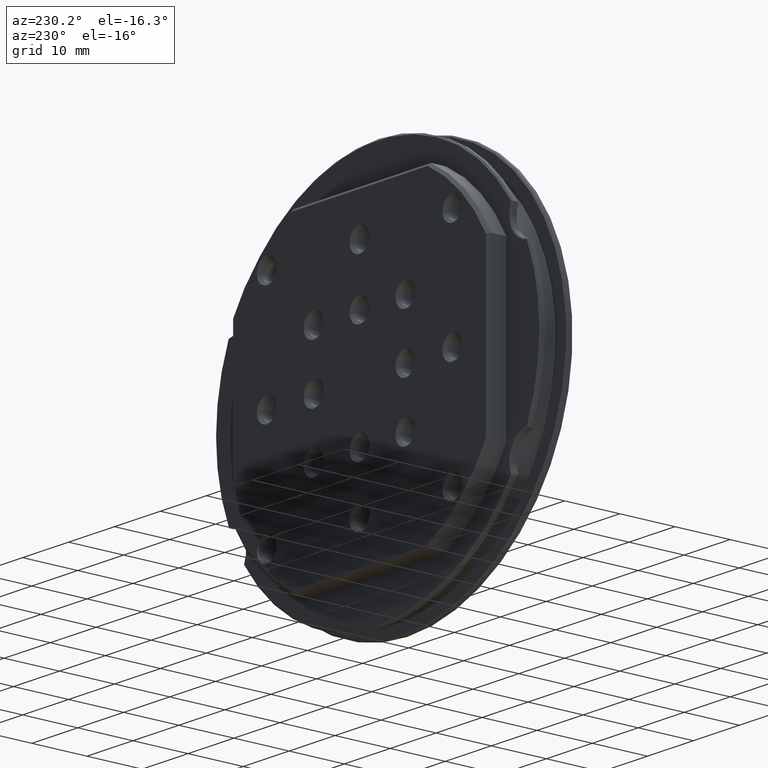
[diagram: clean part render]
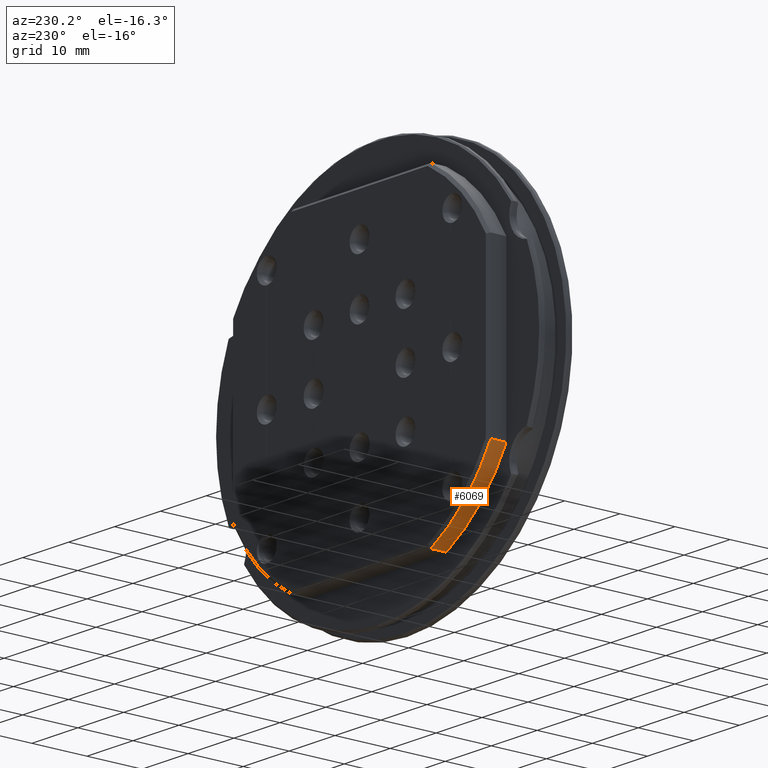
[diagram: same view with one face highlighted and labeled with its STEP entity id]
A machine part, auxiliary view. The second image highlights one B-rep face of the part: STEP entity #6069.
In plain terms, the highlighted cylindrical surface (partial cylindrical patch) has radius 31.75 mm, axis along (-0, 1, -0).
Its self-contained STEP definition (entity closure, byte-faithful):
#250 = CARTESIAN_POINT ( 'NONE',  ( -14.96871737992272067, 5.599999999999999645, -27.99999999999998934 ) ) ;
#494 = DIRECTION ( 'NONE',  ( 0.000000000000000000, -1.000000000000000000, 0.000000000000000000 ) ) ;
#642 = CIRCLE ( 'NONE', #4688, 31.75000000000000000 ) ;
#988 = LINE ( 'NONE', #6336, #2272 ) ;
#1147 = VERTEX_POINT ( 'NONE', #7429 ) ;
#1159 = ORIENTED_EDGE ( 'NONE', *, *, #1390, .T. ) ;
#1381 = EDGE_CURVE ( 'NONE', #5676, #1147, #6469, .T. ) ;
#1390 = EDGE_CURVE ( 'NONE', #1147, #1741, #988, .T. ) ;
#1567 = ORIENTED_EDGE ( 'NONE', *, *, #6518, .T. ) ;
#1731 = DIRECTION ( 'NONE',  ( 0.000000000000000000, 0.000000000000000000, 1.000000000000000000 ) ) ;
#1741 = VERTEX_POINT ( 'NONE', #6709 ) ;
#1854 = DIRECTION ( 'NONE',  ( -0.000000000000000000, 1.000000000000000000, -0.000000000000000000 ) ) ;
#2272 = VECTOR ( 'NONE', #4287, 1000.000000000000000 ) ;
#2364 = CARTESIAN_POINT ( 'NONE',  ( -14.96871737992272067, 8.399999999999991473, -27.99999999999998934 ) ) ;
#2735 = EDGE_CURVE ( 'NONE', #1741, #6852, #642, .T. ) ;
#3268 = DIRECTION ( 'NONE',  ( 0.000000000000000000, 0.000000000000000000, 1.000000000000000000 ) ) ;
#3554 = CARTESIAN_POINT ( 'NONE',  ( 0.000000000000000000, 8.399999999999993250, 0.000000000000000000 ) ) ;
#3754 = DIRECTION ( 'NONE',  ( 0.000000000000000000, 0.000000000000000000, 1.000000000000000000 ) ) ;
#3867 = ORIENTED_EDGE ( 'NONE', *, *, #1381, .T. ) ;
#3902 = CARTESIAN_POINT ( 'NONE',  ( -14.96871737992272422, 5.599999999999994316, -27.99999999999998934 ) ) ;
#4287 = DIRECTION ( 'NONE',  ( -0.000000000000000000, 1.000000000000000000, -0.000000000000000000 ) ) ;
#4426 = CYLINDRICAL_SURFACE ( 'NONE', #4870, 31.75000000000000000 ) ;
#4462 = CARTESIAN_POINT ( 'NONE',  ( 0.000000000000000000, 5.599999999999999645, 0.000000000000000000 ) ) ;
#4572 = AXIS2_PLACEMENT_3D ( 'NONE', #5196, #6483, #3268 ) ;
#4678 = DIRECTION ( 'NONE',  ( 0.000000000000000000, -1.000000000000000000, 0.000000000000000000 ) ) ;
#4688 = AXIS2_PLACEMENT_3D ( 'NONE', #3554, #494, #1731 ) ;
#4870 = AXIS2_PLACEMENT_3D ( 'NONE', #4462, #1854, #3754 ) ;
#5103 = LINE ( 'NONE', #250, #7473 ) ;
#5196 = CARTESIAN_POINT ( 'NONE',  ( 0.000000000000000000, 5.599999999999999645, 0.000000000000000000 ) ) ;
#5676 = VERTEX_POINT ( 'NONE', #3902 ) ;
#6069 = ADVANCED_FACE ( 'NONE', ( #8089 ), #4426, .T. ) ;
#6336 = CARTESIAN_POINT ( 'NONE',  ( -27.99999999999998934, 5.599999999999999645, -14.96871737992272422 ) ) ;
#6469 = CIRCLE ( 'NONE', #4572, 31.75000000000000000 ) ;
#6483 = DIRECTION ( 'NONE',  ( 0.000000000000000000, 1.000000000000000000, 0.000000000000000000 ) ) ;
#6518 = EDGE_CURVE ( 'NONE', #6852, #5676, #5103, .T. ) ;
#6709 = CARTESIAN_POINT ( 'NONE',  ( -27.99999999999998934, 8.399999999999993250, -14.96871737992272422 ) ) ;
#6852 = VERTEX_POINT ( 'NONE', #2364 ) ;
#7429 = CARTESIAN_POINT ( 'NONE',  ( -27.99999999999998934, 5.599999999999999645, -14.96871737992272422 ) ) ;
#7473 = VECTOR ( 'NONE', #4678, 1000.000000000000000 ) ;
#7525 = EDGE_LOOP ( 'NONE', ( #1159, #8180, #1567, #3867 ) ) ;
#8089 = FACE_OUTER_BOUND ( 'NONE', #7525, .T. ) ;
#8180 = ORIENTED_EDGE ( 'NONE', *, *, #2735, .T. ) ;